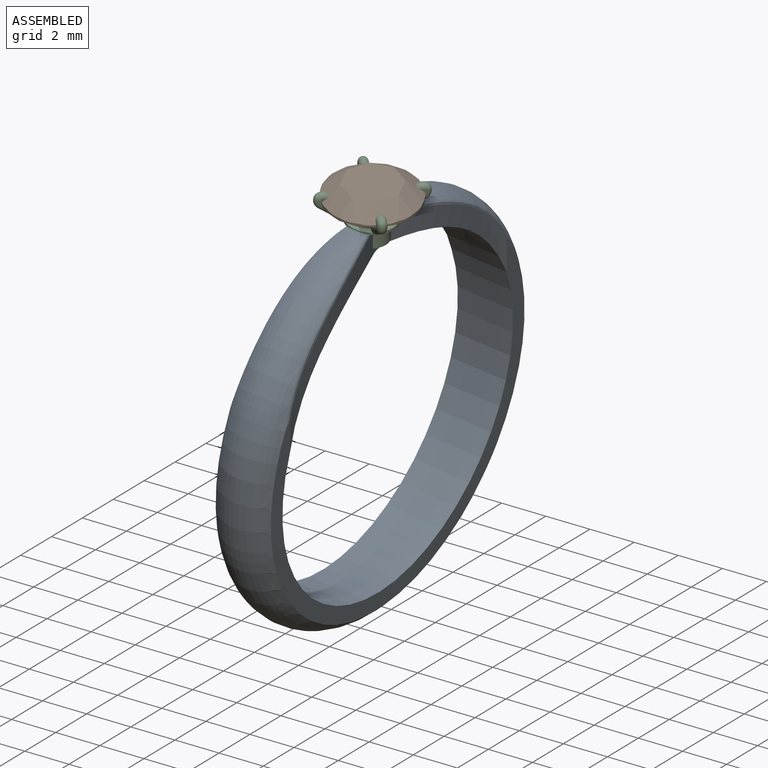
[diagram: assembled view]
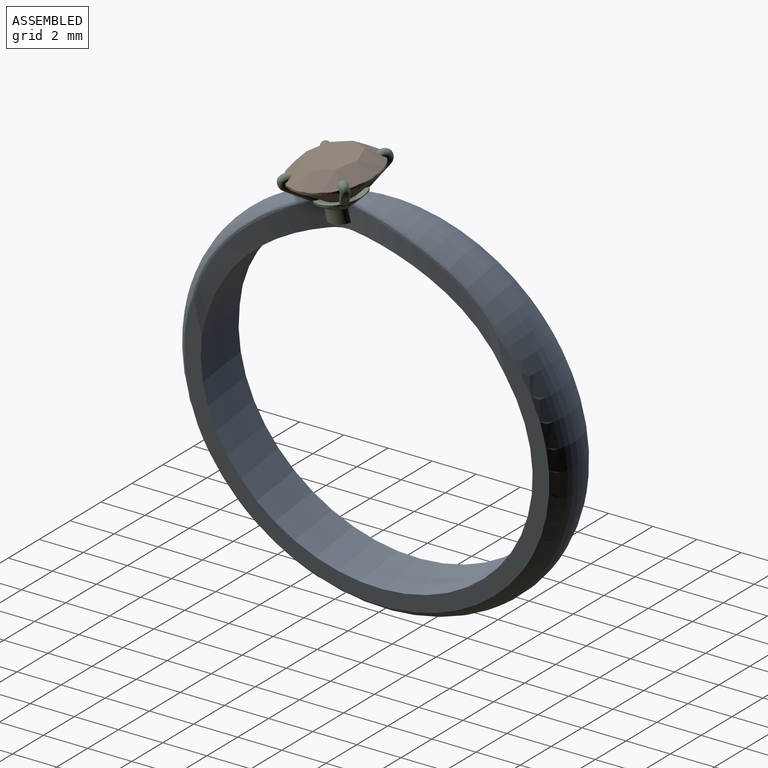
[diagram: assembled view, second angle]
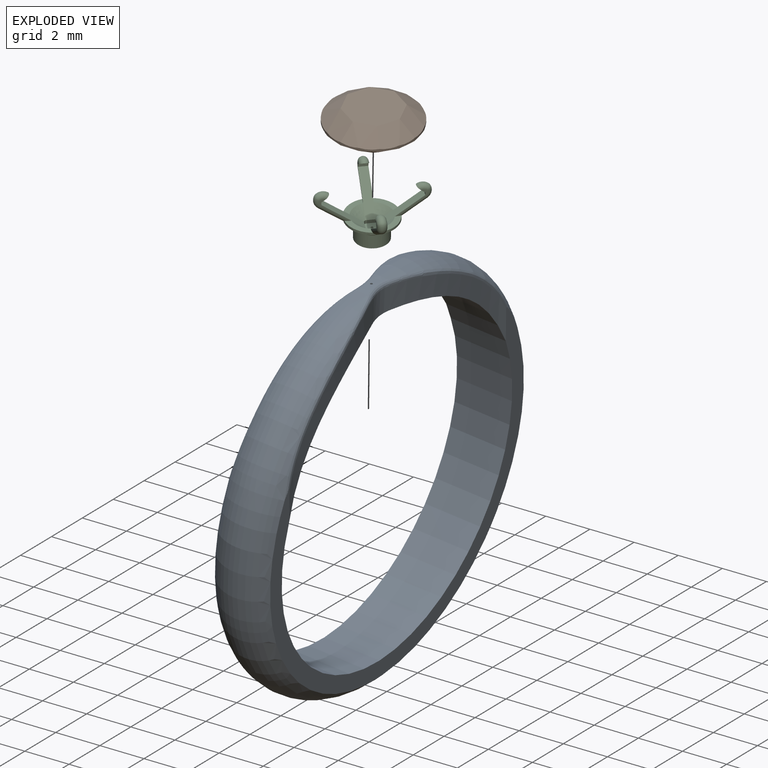
[diagram: exploded view]
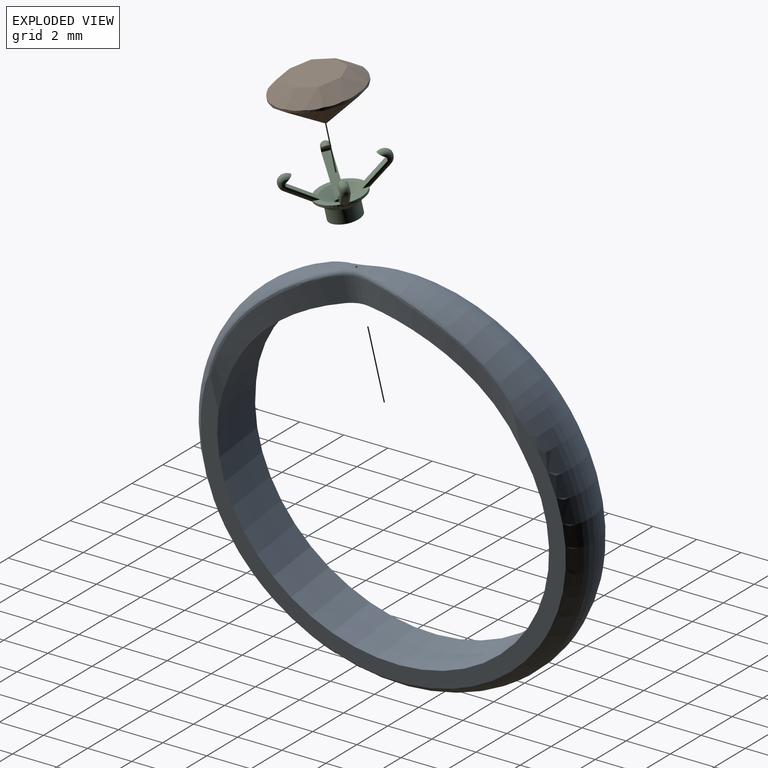
[diagram: exploded view, second angle]
ASSEMBLY  parts=3 mates=2
PART A: 17 faces, bbox 19.3x19.3x3.1 mm
  f0: cylinder r=7.45mm len=14.9mm, axis (0,0,-1), area 105.5mm2, adj f1,f2,f4,f5,f6,f7,f8,f9
  f1: plane 16.62x12.52mm, normal (0,0,1), area 23.8mm2, adj f0,f3,f5,f7,f14,f16
  f2: plane 16.62x12.52mm, normal (0,0,-1), area 23.8mm2, adj f0,f3,f8,f10,f11,f13
  f3: torus R=7.19mm, axis (0,0,-1), area 135.5mm2, adj f1,f2,f4,f11,f12,f13,f14,f15
  f4: cylinder r=0.05mm len=1.35mm, axis (1,0,0), area 0.4mm2, adj f0,f3
  f5: extruded ~6.44x6.01mm, area 7.3mm2, adj f0,f1,f6,f15,f16
  f6: cylinder r=2mm len=1.13mm, axis (1,0,0), area 1.3mm2, adj f0,f5,f7,f15
  f7: extruded ~6.44x6.01mm, area 7.3mm2, adj f0,f1,f6,f14,f15
  f8: extruded ~6.44x6.01mm, area 7.3mm2, adj f0,f2,f9,f12,f13
  f9: cylinder r=2mm len=1.13mm, axis (1,0,0), area 1.3mm2, adj f0,f8,f10,f12
  f10: extruded ~6.44x6.01mm, area 7.3mm2, adj f0,f2,f9,f11,f12
  f11: bspline ~7.16x5.41mm, area 1.8mm2, adj f2,f3,f10,f12
  f12: bspline ~1.52x0.31mm, area 0.3mm2, adj f3,f8,f9,f10,f11,f13
  f13: bspline ~7.75x6.87mm, area 1.8mm2, adj f2,f3,f8,f12
  f14: bspline ~7.22x5.62mm, area 1.8mm2, adj f1,f3,f7,f15
  f15: bspline ~1.69x0.34mm, area 0.3mm2, adj f3,f5,f6,f7,f14,f16
  f16: bspline ~7.76x6.86mm, area 1.8mm2, adj f1,f3,f5,f15
PART B: 43 faces, bbox 3.9x3.9x2.1 mm
  f0: plane 1.71x1.44mm, normal (0.37,0.48,-0.8), area 0.9mm2, adj f1,f15,f16,f17
  f1: plane 1.9x1.43mm, normal (0.16,0.58,-0.8), area 0.9mm2, adj f0,f2,f16,f17
  f2: plane 1.9x1.43mm, normal (-0.08,0.6,-0.8), area 0.9mm2, adj f1,f3,f16,f17
  f3: plane 1.81x1.43mm, normal (-0.3,0.52,-0.8), area 0.9mm2, adj f2,f4,f16,f17
  f4: plane 1.71x1.44mm, normal (-0.48,0.37,-0.8), area 0.9mm2, adj f3,f5,f16,f17
  f5: plane 1.9x1.43mm, normal (-0.58,0.16,-0.8), area 0.9mm2, adj f4,f6,f16,f17
  f6: plane 1.9x1.43mm, normal (-0.6,-0.08,-0.8), area 0.9mm2, adj f5,f7,f16,f17
  f7: plane 1.81x1.43mm, normal (-0.52,-0.3,-0.8), area 0.9mm2, adj f6,f8,f16,f17
  f8: plane 1.71x1.44mm, normal (-0.37,-0.48,-0.8), area 0.9mm2, adj f7,f9,f16,f17
  f9: plane 1.9x1.43mm, normal (-0.16,-0.58,-0.8), area 0.9mm2, adj f8,f10,f16,f17
  f10: plane 1.9x1.43mm, normal (0.08,-0.6,-0.8), area 0.9mm2, adj f9,f11,f16,f17
  f11: plane 1.81x1.43mm, normal (0.3,-0.52,-0.8), area 0.9mm2, adj f10,f12,f16,f17
  f12: plane 1.71x1.44mm, normal (0.48,-0.37,-0.8), area 0.9mm2, adj f11,f13,f16,f17
  f13: plane 1.9x1.43mm, normal (0.58,-0.16,-0.8), area 0.9mm2, adj f12,f14,f16,f17
  f14: plane 1.9x1.43mm, normal (0.6,0.08,-0.8), area 0.9mm2, adj f13,f15,f16,f17
  f15: plane 1.81x1.43mm, normal (0.52,0.3,-0.8), area 0.9mm2, adj f0,f14,f16,f17
  f16: plane 0.13x0.13mm, normal (0,0,-1), area 0mm2, adj f0,f1,f2,f3,f4,f5,f6,f7
  f17: cylinder r=1.96mm len=3.92mm, axis (0,0,1), area 1.3mm2, adj f0,f1,f2,f3,f4,f5,f6,f7
  f18: plane 2.47x2.47mm, normal (0,0,1), area 4.3mm2, adj f19,f22,f25,f28,f31,f34,f37,f40
  f19: plane 0.93x0.9mm, normal (0.52,0.18,0.84), area 0.5mm2, adj f17,f18,f20,f21
  f20: plane 0.92x0.64mm, normal (0.52,0.3,0.8), area 0.4mm2, adj f17,f19,f42
  f21: plane 0.74x0.72mm, normal (0.6,0.08,0.8), area 0.4mm2, adj f17,f19,f23
  f22: plane 0.95x0.85mm, normal (0.49,-0.24,0.84), area 0.5mm2, adj f17,f18,f23,f24
  f23: plane 0.77x0.72mm, normal (0.58,-0.16,0.8), area 0.4mm2, adj f17,f21,f22
  f24: plane 0.93x0.59mm, normal (0.48,-0.37,0.8), area 0.4mm2, adj f17,f22,f26
  f25: plane 0.93x0.9mm, normal (0.18,-0.52,0.84), area 0.5mm2, adj f17,f18,f26,f27
  f26: plane 0.92x0.64mm, normal (0.3,-0.52,0.8), area 0.4mm2, adj f17,f24,f25
  f27: plane 0.74x0.72mm, normal (0.08,-0.6,0.8), area 0.4mm2, adj f17,f25,f29
  f28: plane 0.95x0.85mm, normal (-0.24,-0.49,0.84), area 0.5mm2, adj f17,f18,f29,f30
  f29: plane 0.77x0.72mm, normal (-0.16,-0.58,0.8), area 0.4mm2, adj f17,f27,f28
  f30: plane 0.93x0.59mm, normal (-0.37,-0.48,0.8), area 0.4mm2, adj f17,f28,f32
  f31: plane 0.93x0.9mm, normal (-0.52,-0.18,0.84), area 0.5mm2, adj f17,f18,f32,f33
  f32: plane 0.92x0.64mm, normal (-0.52,-0.3,0.8), area 0.4mm2, adj f17,f30,f31
  f33: plane 0.74x0.72mm, normal (-0.6,-0.08,0.8), area 0.4mm2, adj f17,f31,f35
  f34: plane 0.95x0.85mm, normal (-0.49,0.24,0.84), area 0.5mm2, adj f17,f18,f35,f36
  f35: plane 0.77x0.72mm, normal (-0.58,0.16,0.8), area 0.4mm2, adj f17,f33,f34
  f36: plane 0.93x0.59mm, normal (-0.48,0.37,0.8), area 0.4mm2, adj f17,f34,f38
  f37: plane 0.93x0.9mm, normal (-0.18,0.52,0.84), area 0.5mm2, adj f17,f18,f38,f39
  f38: plane 0.92x0.64mm, normal (-0.3,0.52,0.8), area 0.4mm2, adj f17,f36,f37
  f39: plane 0.74x0.72mm, normal (-0.08,0.6,0.8), area 0.4mm2, adj f17,f37,f41
  f40: plane 0.95x0.85mm, normal (0.24,0.49,0.84), area 0.5mm2, adj f17,f18,f41,f42
  f41: plane 0.77x0.72mm, normal (0.16,0.58,0.8), area 0.4mm2, adj f17,f39,f40
  f42: plane 0.93x0.59mm, normal (0.37,0.48,0.8), area 0.4mm2, adj f17,f20,f40
PART C: 59 faces, bbox 4.6x4.6x2.3 mm
  f0: cylinder r=0.05mm len=0.46mm, axis (0,0,-1), area 0.1mm2, adj f49,f58
  f1: plane 1.68x1.25mm, normal (-0.59,0,0.8), area 0.8mm2, adj f5,f6,f18,f37,f38,f56
  f2: plane 1.7x1.26mm, normal (0,0.59,0.8), area 0.8mm2, adj f9,f10,f23,f38,f44,f54
  f3: plane 1.68x1.25mm, normal (0,-0.59,0.8), area 0.8mm2, adj f8,f12,f28,f37,f39,f50
  f4: plane 1.69x1.25mm, normal (0.59,0,0.8), area 0.8mm2, adj f14,f15,f33,f39,f44,f52
  f5: plane 1.22x1.09mm, normal (0,-1,0), area 0.1mm2, adj f1,f7,f17,f18,f19,f20,f41
  f6: plane 1.22x1.09mm, normal (0,1,0), area 0.1mm2, adj f1,f7,f17,f18,f19,f20,f40
  f7: cylinder r=0.2mm len=1.19mm, axis (-0.81,0,-0.59), area 0.8mm2, adj f5,f6,f19,f40,f41,f46
  f8: plane 1.22x1.09mm, normal (1,0,0), area 0.1mm2, adj f3,f13,f27,f28,f29,f30,f40
  f9: plane 1.22x1.09mm, normal (-1,0,0), area 0.1mm2, adj f2,f11,f22,f23,f24,f25,f45
  f10: plane 1.22x1.09mm, normal (1,0,0), area 0.1mm2, adj f2,f11,f22,f23,f24,f25,f41
  f11: cylinder r=0.2mm len=1.19mm, axis (0,0.81,-0.59), area 0.8mm2, adj f9,f10,f24,f41,f45,f46
  f12: plane 1.22x1.09mm, normal (-1,0,0), area 0.1mm2, adj f3,f13,f27,f28,f29,f30,f42
  f13: cylinder r=0.2mm len=1.19mm, axis (0,-0.81,-0.59), area 0.8mm2, adj f8,f12,f29,f40,f42,f46
  f14: plane 1.22x1.09mm, normal (0,1,0), area 0.1mm2, adj f4,f16,f32,f33,f34,f35,f42
  f15: plane 1.22x1.09mm, normal (0,-1,0), area 0.1mm2, adj f4,f16,f32,f33,f34,f35,f45
  f16: cylinder r=0.2mm len=1.19mm, axis (0.81,0,-0.59), area 0.8mm2, adj f14,f15,f34,f42,f45,f46
  f17: plane 0.4x0.32mm, normal (-0.6,0,-0.8), area 0.1mm2, adj f5,f6,f18,f20
  f18: plane 0.4x0.12mm, normal (-1,0,0), area 0mm2, adj f1,f5,f6,f17
  f19: torus R=0.2mm, axis (0,-1,0), area 0.3mm2, adj f5,f6,f7,f21
  f20: torus R=0.2mm, axis (0,-1,0), area 0.3mm2, adj f5,f6,f17,f21
  f21: sphere r=0.2mm, area 0mm2, adj f19,f20
  f22: plane 0.4x0.32mm, normal (0,0.6,-0.8), area 0.1mm2, adj f9,f10,f23,f25
  f23: plane 0.4x0.12mm, normal (0,1,0), area 0mm2, adj f2,f9,f10,f22
  f24: torus R=0.2mm, axis (-1,0,0), area 0.3mm2, adj f9,f10,f11,f26
  f25: torus R=0.2mm, axis (-1,0,0), area 0.3mm2, adj f9,f10,f22,f26
  f26: sphere r=0.2mm, area 0mm2, adj f24,f25
  f27: plane 0.4x0.32mm, normal (0,-0.6,-0.8), area 0.1mm2, adj f8,f12,f28,f30
  f28: plane 0.4x0.12mm, normal (0,-1,0), area 0mm2, adj f3,f8,f12,f27
  f29: torus R=0.2mm, axis (1,0,0), area 0.3mm2, adj f8,f12,f13,f31
  f30: torus R=0.2mm, axis (1,0,0), area 0.3mm2, adj f8,f12,f27,f31
  f31: sphere r=0.2mm, area 0mm2, adj f29,f30
  f32: plane 0.4x0.32mm, normal (0.6,0,-0.8), area 0.1mm2, adj f14,f15,f33,f35
  f33: plane 0.4x0.12mm, normal (1,0,0), area 0mm2, adj f4,f14,f15,f32
  f34: torus R=0.2mm, axis (0,1,0), area 0.3mm2, adj f14,f15,f16,f36
  f35: torus R=0.2mm, axis (0,1,0), area 0.3mm2, adj f14,f15,f32,f36
  f36: sphere r=0.2mm, area 0mm2, adj f34,f35
  f37: revolved ~0.87x0.62mm, area 0.3mm2, adj f1,f3,f40,f57
  f38: revolved ~0.87x0.62mm, area 0.3mm2, adj f1,f2,f41,f55
  f39: revolved ~0.87x0.62mm, area 0.3mm2, adj f3,f4,f42,f51
  f40: plane 0.93x0.93mm, normal (0,0,1), area 0.3mm2, adj f6,f7,f8,f13,f37,f46
  f41: plane 0.93x0.93mm, normal (0,0,1), area 0.3mm2, adj f5,f7,f10,f11,f38,f46
  f42: plane 0.93x0.93mm, normal (0,0,1), area 0.3mm2, adj f12,f13,f14,f16,f39,f46
  f43: revolved ~2.19x2.19mm, area 5.5mm2, adj f46,f47
  f44: revolved ~0.87x0.62mm, area 0.3mm2, adj f2,f4,f45,f53
  f45: plane 0.93x0.93mm, normal (0,0,1), area 0.3mm2, adj f9,f11,f15,f16,f44,f46
  f46: cylinder r=1.09mm len=2.19mm, axis (0,0,-1), area 0.6mm2, adj f7,f11,f13,f16,f40,f41,f42,f43
  f47: plane 1.41x1.41mm, normal (0,0,1), area 0mm2, adj f43,f48
  f48: cylinder r=0.71mm len=1.41mm, axis (0,0,1), area 2.7mm2, adj f47,f49
  f49: plane 1.41x1.41mm, normal (0,0,-1), area 1.6mm2, adj f0,f48
  f50: plane 0.4x0.15mm, normal (0,-1,0), area 0.1mm2, adj f3,f51,f57,f58
  f51: cylinder r=0.34mm len=0.15mm, axis (0,0,1), area 0mm2, adj f39,f50,f52,f58
  f52: plane 0.4x0.15mm, normal (1,0,0), area 0.1mm2, adj f4,f51,f53,f58
  f53: cylinder r=0.34mm len=0.15mm, axis (0,0,1), area 0mm2, adj f44,f52,f54,f58
  f54: plane 0.4x0.15mm, normal (0,1,0), area 0.1mm2, adj f2,f53,f55,f58
  f55: cylinder r=0.34mm len=0.15mm, axis (0,0,1), area 0mm2, adj f38,f54,f56,f58
  f56: plane 0.4x0.15mm, normal (-1,0,0), area 0.1mm2, adj f1,f55,f57,f58
  f57: cylinder r=0.34mm len=0.15mm, axis (0,0,1), area 0mm2, adj f37,f50,f56,f58
  f58: plane 0.55x0.55mm, normal (0,0,1), area 0.3mm2, adj f0,f50,f51,f52,f53,f54,f55,f56
PLACE A rot(axis=(0.08,-0.99,-0.08),83.6deg) t=(-2.56,-1.35,-5.85)mm
PLACE B rot(axis=(0.24,0.06,0.97),46.4deg) t=(-2.67,-2.83,3.75)mm
PLACE C rot(axis=(0.24,0.06,0.97),46.4deg) t=(-2.84,-2.6,2.3)mm
MATE cylindrical A.f4 <-> C.f0  axis (0.12,-0.15,0.98) through (-2.77,-2.7,2.94)mm
MATE fastened C.f0 <-> B.f17  axis (-0.12,0.15,-0.98) through (-2.84,-2.61,2.35)mm
